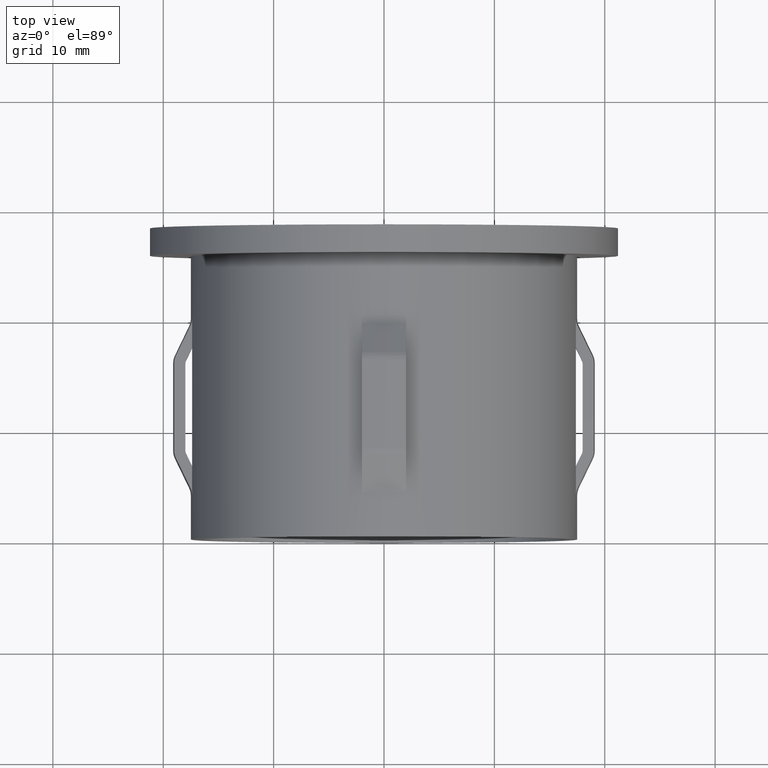
[diagram: clean part render]
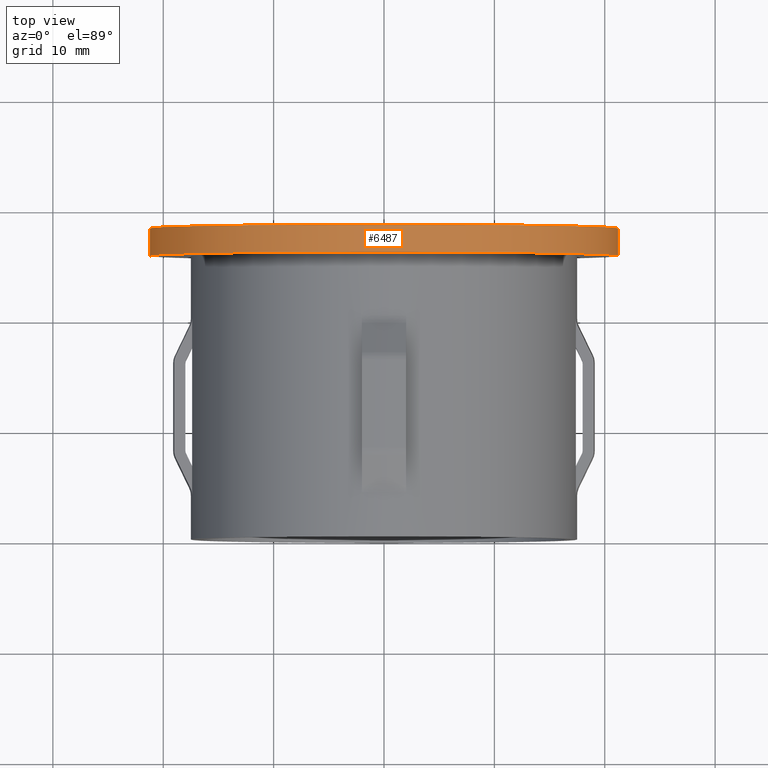
[diagram: same view with one face highlighted and labeled with its STEP entity id]
A machine part, top view. The second image highlights one B-rep face of the part: STEP entity #6487.
In plain terms, the highlighted cylindrical surface (partial cylindrical patch) has radius 21.2 mm, axis along (-0, 1, -0).
Its self-contained STEP definition (entity closure, byte-faithful):
#686 = EDGE_CURVE ( 'NONE', #3908, #9684, #15165, .T. ) ;
#901 = ORIENTED_EDGE ( 'NONE', *, *, #8688, .T. ) ;
#909 = CARTESIAN_POINT ( 'NONE',  ( -21.19999999999999600, 28.19999999999999600, 0.0000000000000000000 ) ) ;
#944 = EDGE_LOOP ( 'NONE', ( #901, #15113, #2037, #11446 ) ) ;
#1397 = DIRECTION ( 'NONE',  ( -1.714505518806297100E-016, 1.000000000000000000, -0.0000000000000000000 ) ) ;
#1555 = CARTESIAN_POINT ( 'NONE',  ( -2.449293598294702500E-016, 28.19999999999999600, 0.0000000000000000000 ) ) ;
#2037 = ORIENTED_EDGE ( 'NONE', *, *, #686, .F. ) ;
#2929 = CYLINDRICAL_SURFACE ( 'NONE', #15371, 21.19999999999999600 ) ;
#3009 = CARTESIAN_POINT ( 'NONE',  ( 1.836970198721037800E-016, 25.69999999999999600, 0.0000000000000000000 ) ) ;
#3908 = VERTEX_POINT ( 'NONE', #15634 ) ;
#3984 = VERTEX_POINT ( 'NONE', #8430 ) ;
#4247 = AXIS2_PLACEMENT_3D ( 'NONE', #1555, #12645, #5339 ) ;
#4971 = VECTOR ( 'NONE', #1397, 1000.000000000000000 ) ;
#5261 = VECTOR ( 'NONE', #14253, 1000.000000000000000 ) ;
#5339 = DIRECTION ( 'NONE',  ( -1.000000000000000000, -1.636531581110195400E-016, 0.0000000000000000000 ) ) ;
#5356 = DIRECTION ( 'NONE',  ( -1.000000000000000000, -1.636531581110195700E-016, 0.0000000000000000000 ) ) ;
#5409 = DIRECTION ( 'NONE',  ( -1.714505518806297100E-016, 1.000000000000000000, -0.0000000000000000000 ) ) ;
#6487 = ADVANCED_FACE ( 'NONE', ( #15245 ), #2929, .T. ) ;
#8430 = CARTESIAN_POINT ( 'NONE',  ( -21.19999999999999600, 25.69999999999999200, 0.0000000000000000000 ) ) ;
#8688 = EDGE_CURVE ( 'NONE', #3984, #9178, #13504, .T. ) ;
#9178 = VERTEX_POINT ( 'NONE', #11804 ) ;
#9377 = CARTESIAN_POINT ( 'NONE',  ( 21.19999999999999900, 28.19999999999999900, 2.596251214192388800E-015 ) ) ;
#9571 = CARTESIAN_POINT ( 'NONE',  ( -2.449293598294708900E-016, 28.19999999999999900, 0.0000000000000000000 ) ) ;
#9655 = LINE ( 'NONE', #909, #5261 ) ;
#9684 = VERTEX_POINT ( 'NONE', #9377 ) ;
#10647 = DIRECTION ( 'NONE',  ( -1.000000000000000000, -1.636531581110195700E-016, 0.0000000000000000000 ) ) ;
#11446 = ORIENTED_EDGE ( 'NONE', *, *, #11713, .F. ) ;
#11713 = EDGE_CURVE ( 'NONE', #3984, #3908, #9655, .T. ) ;
#11804 = CARTESIAN_POINT ( 'NONE',  ( 21.19999999999999600, 25.69999999999999900, 2.596251214192388400E-015 ) ) ;
#12564 = AXIS2_PLACEMENT_3D ( 'NONE', #3009, #5409, #5356 ) ;
#12645 = DIRECTION ( 'NONE',  ( -1.714505518806297100E-016, 1.000000000000000000, -0.0000000000000000000 ) ) ;
#13504 = CIRCLE ( 'NONE', #12564, 21.19999999999999600 ) ;
#13516 = LINE ( 'NONE', #14382, #4971 ) ;
#13629 = EDGE_CURVE ( 'NONE', #9178, #9684, #13516, .T. ) ;
#14253 = DIRECTION ( 'NONE',  ( -1.714505518806297100E-016, 1.000000000000000000, -0.0000000000000000000 ) ) ;
#14382 = CARTESIAN_POINT ( 'NONE',  ( 21.19999999999999600, 28.20000000000000300, 2.596251214192388400E-015 ) ) ;
#14439 = DIRECTION ( 'NONE',  ( -1.714505518806297100E-016, 1.000000000000000000, -0.0000000000000000000 ) ) ;
#15113 = ORIENTED_EDGE ( 'NONE', *, *, #13629, .T. ) ;
#15165 = CIRCLE ( 'NONE', #4247, 21.19999999999999900 ) ;
#15245 = FACE_OUTER_BOUND ( 'NONE', #944, .T. ) ;
#15371 = AXIS2_PLACEMENT_3D ( 'NONE', #9571, #14439, #10647 ) ;
#15634 = CARTESIAN_POINT ( 'NONE',  ( -21.19999999999999900, 28.19999999999999200, 0.0000000000000000000 ) ) ;